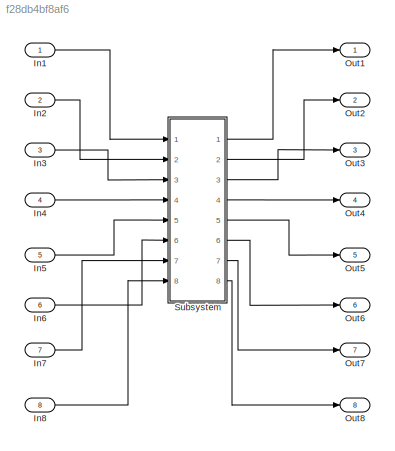
MODEL slx_f28db4bf8af6
KIND model
BLOCK [Inport] In1
  IconDisplay = Port number
  OutDataTypeStr = boolean
  SampleTime = 1
BLOCK [Inport] In2
  IconDisplay = Port number
  OutDataTypeStr = boolean
  Port = 2
  SampleTime = 1
BLOCK [Inport] In3
  IconDisplay = Port number
  OutDataTypeStr = boolean
  Port = 3
  SampleTime = 1
BLOCK [Inport] In4
  IconDisplay = Port number
  OutDataTypeStr = boolean
  Port = 4
  SampleTime = 1
BLOCK [Inport] In5
  IconDisplay = Port number
  OutDataTypeStr = boolean
  Port = 5
  SampleTime = 1
BLOCK [Inport] In6
  IconDisplay = Port number
  OutDataTypeStr = boolean
  Port = 6
  SampleTime = 1
BLOCK [Inport] In7
  IconDisplay = Port number
  OutDataTypeStr = boolean
  Port = 7
  SampleTime = 1
BLOCK [Inport] In8
  IconDisplay = Port number
  OutDataTypeStr = boolean
  Port = 8
  SampleTime = 1
BLOCK [Outport] Out1
  IconDisplay = Port number
BLOCK [Outport] Out2
  IconDisplay = Port number
  Port = 2
BLOCK [Outport] Out3
  IconDisplay = Port number
  Port = 3
BLOCK [Outport] Out4
  IconDisplay = Port number
  Port = 4
BLOCK [Outport] Out5
  IconDisplay = Port number
  Port = 5
BLOCK [Outport] Out6
  IconDisplay = Port number
  Port = 6
BLOCK [Outport] Out7
  IconDisplay = Port number
  Port = 7
BLOCK [Outport] Out8
  IconDisplay = Port number
  Port = 8
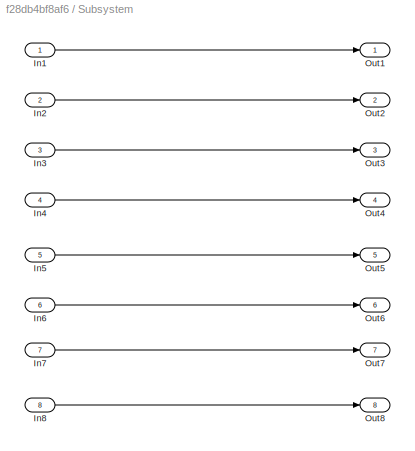
BLOCK [SubSystem] Subsystem
  Ports = [8, 8]
  RequestExecContextInheritance = off
  TreatAsAtomicUnit = on
BLOCK [Inport] Subsystem/In1
  IconDisplay = Port number
  OutDataTypeStr = boolean
  SampleTime = 1
BLOCK [Inport] Subsystem/In2
  IconDisplay = Port number
  OutDataTypeStr = boolean
  Port = 2
  SampleTime = 1
BLOCK [Inport] Subsystem/In3
  IconDisplay = Port number
  OutDataTypeStr = boolean
  Port = 3
  SampleTime = 1
BLOCK [Inport] Subsystem/In4
  IconDisplay = Port number
  OutDataTypeStr = boolean
  Port = 4
  SampleTime = 1
BLOCK [Inport] Subsystem/In5
  IconDisplay = Port number
  OutDataTypeStr = boolean
  Port = 5
  SampleTime = 1
BLOCK [Inport] Subsystem/In6
  IconDisplay = Port number
  OutDataTypeStr = boolean
  Port = 6
  SampleTime = 1
BLOCK [Inport] Subsystem/In7
  IconDisplay = Port number
  OutDataTypeStr = boolean
  Port = 7
  SampleTime = 1
BLOCK [Inport] Subsystem/In8
  IconDisplay = Port number
  OutDataTypeStr = boolean
  Port = 8
  SampleTime = 1
BLOCK [Outport] Subsystem/Out1
  IconDisplay = Port number
BLOCK [Outport] Subsystem/Out2
  IconDisplay = Port number
  Port = 2
BLOCK [Outport] Subsystem/Out3
  IconDisplay = Port number
  Port = 3
BLOCK [Outport] Subsystem/Out4
  IconDisplay = Port number
  Port = 4
BLOCK [Outport] Subsystem/Out5
  IconDisplay = Port number
  Port = 5
BLOCK [Outport] Subsystem/Out6
  IconDisplay = Port number
  Port = 6
BLOCK [Outport] Subsystem/Out7
  IconDisplay = Port number
  Port = 7
BLOCK [Outport] Subsystem/Out8
  IconDisplay = Port number
  Port = 8
LINE In1:1 -> Subsystem:1
LINE In2:1 -> Subsystem:2
LINE In3:1 -> Subsystem:3
LINE In4:1 -> Subsystem:4
LINE In5:1 -> Subsystem:5
LINE In6:1 -> Subsystem:6
LINE In7:1 -> Subsystem:7
LINE In8:1 -> Subsystem:8
LINE Subsystem/In1:1 -> Subsystem/Out1:1
LINE Subsystem/In2:1 -> Subsystem/Out2:1
LINE Subsystem/In3:1 -> Subsystem/Out3:1
LINE Subsystem/In4:1 -> Subsystem/Out4:1
LINE Subsystem/In5:1 -> Subsystem/Out5:1
LINE Subsystem/In6:1 -> Subsystem/Out6:1
LINE Subsystem/In7:1 -> Subsystem/Out7:1
LINE Subsystem/In8:1 -> Subsystem/Out8:1
LINE Subsystem:1 -> Out1:1
LINE Subsystem:2 -> Out2:1
LINE Subsystem:3 -> Out3:1
LINE Subsystem:4 -> Out4:1
LINE Subsystem:5 -> Out5:1
LINE Subsystem:6 -> Out6:1
LINE Subsystem:7 -> Out7:1
LINE Subsystem:8 -> Out8:1
